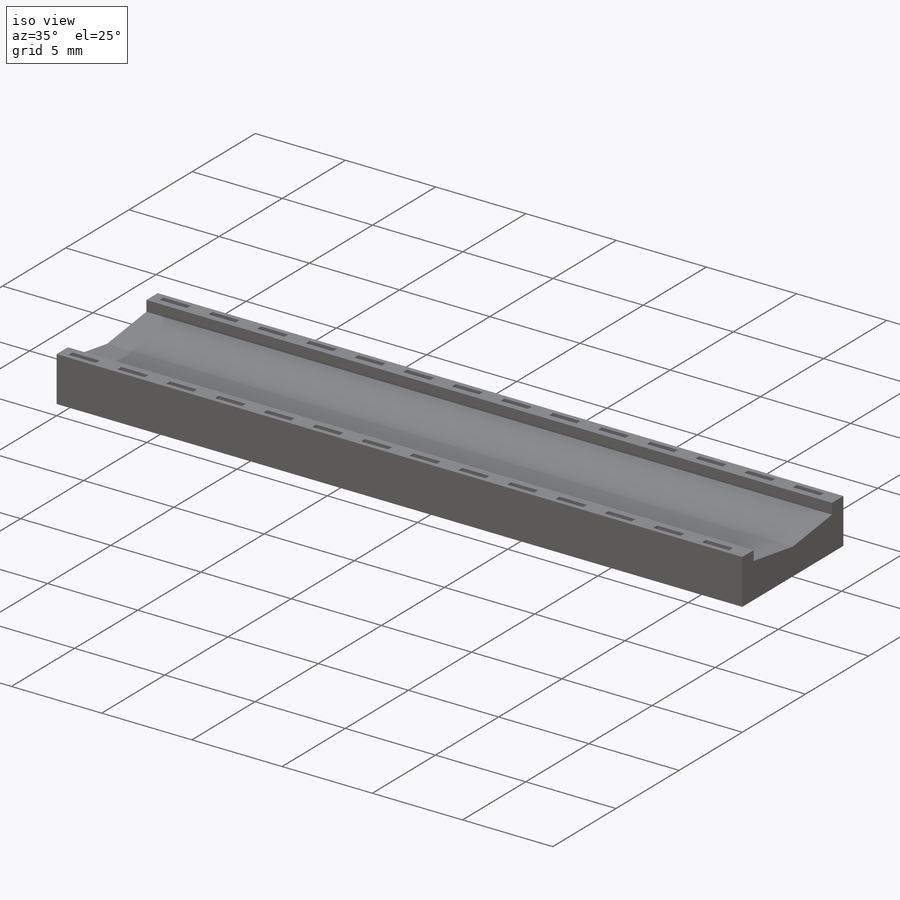
[diagram: iso view]
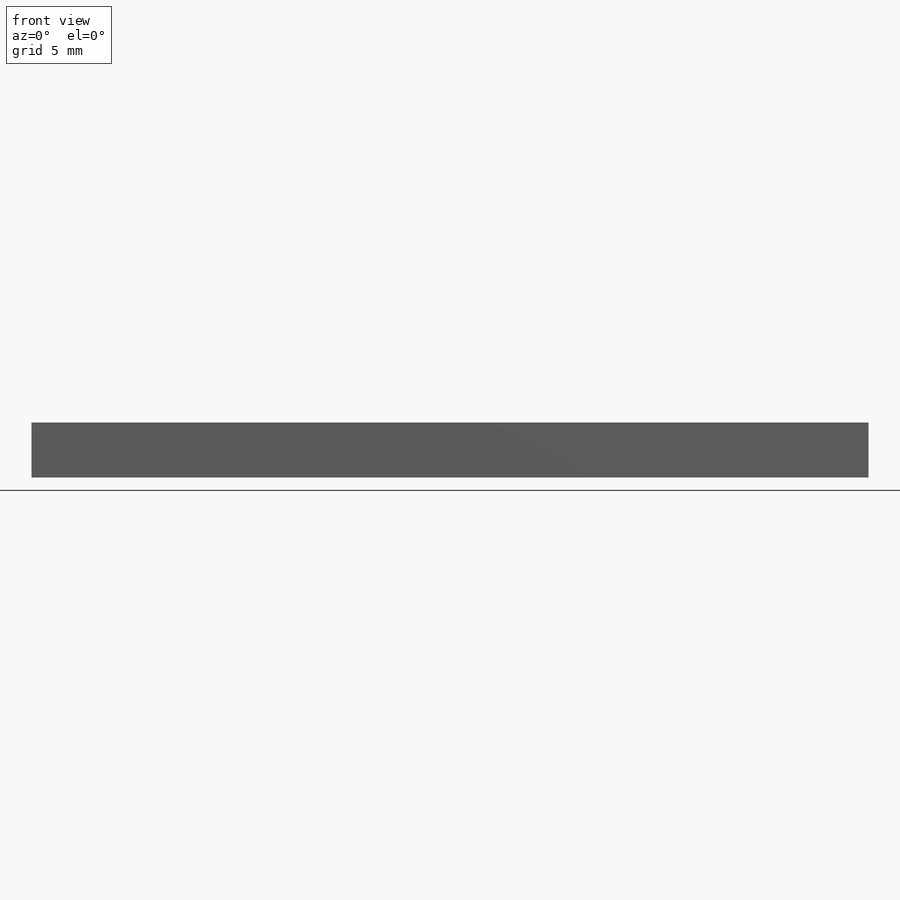
[diagram: front view]
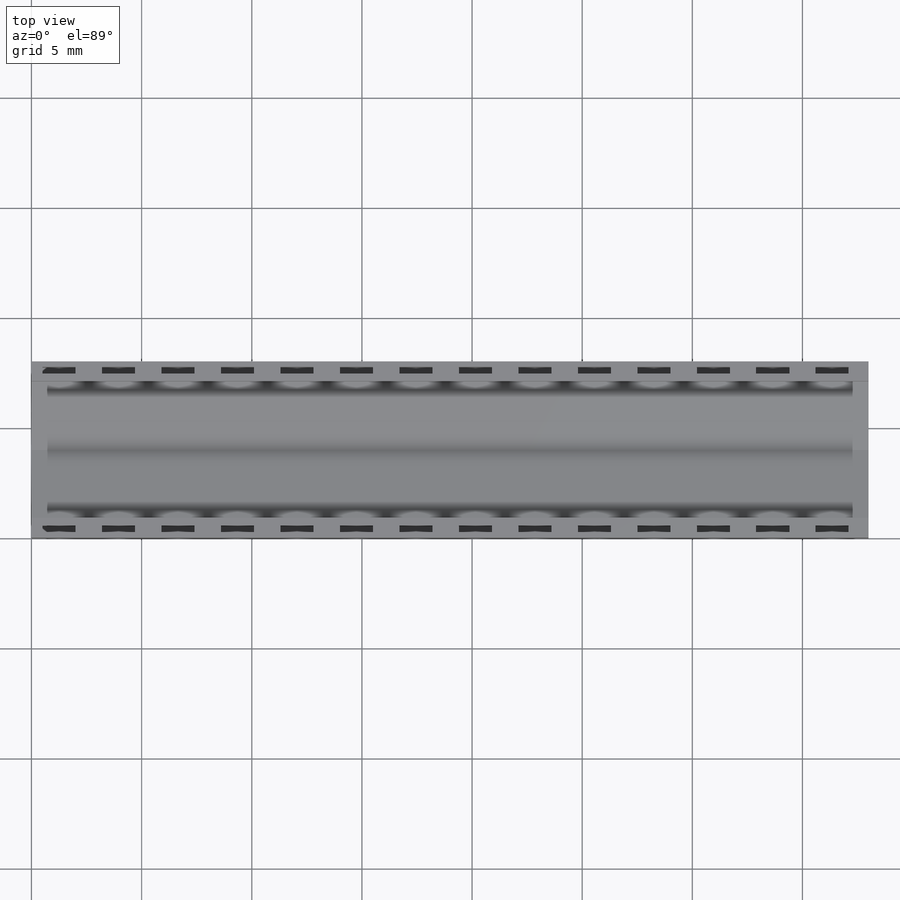
[diagram: top view]
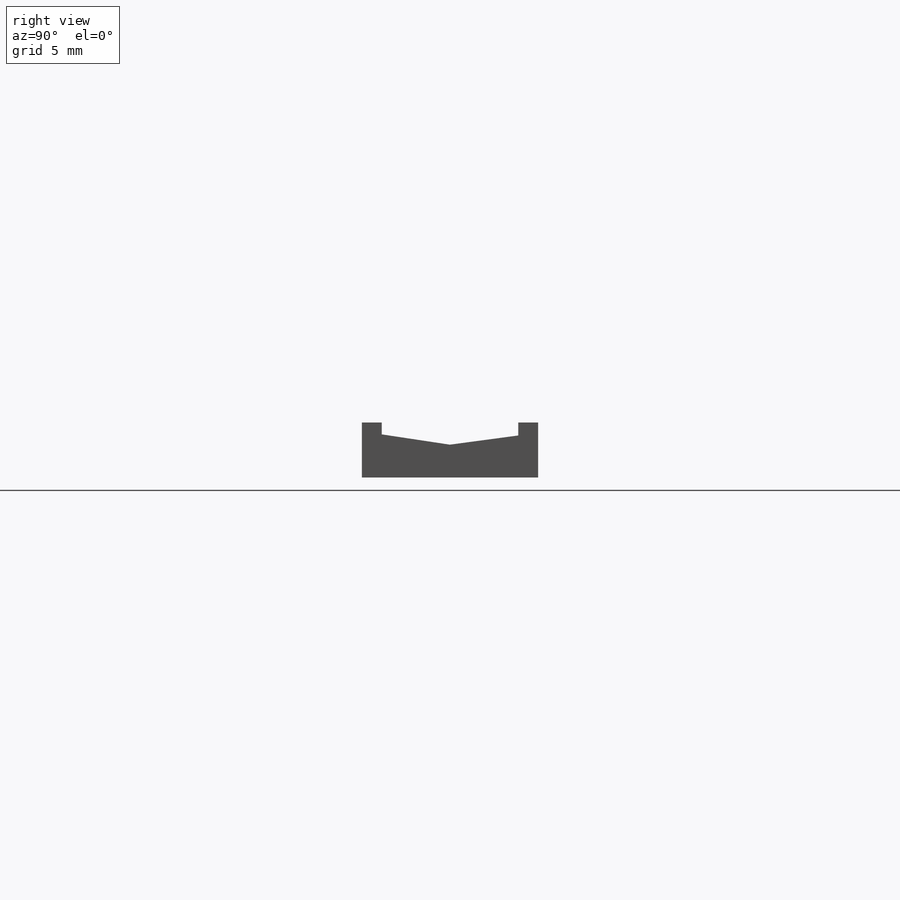
[diagram: right view]
SOLIDWORKS PART (.sldprt)
format: sldprt  version: not decoded by parser v0  size: 236,544 bytes
history: native  units: mm
features: sketch x3, cut_extrude x2, material x1, extrude x1, pattern_linear x1 (+12 scaffold rows collapsed)
feature tree (20):
  scaffold x12  (default folders/planes/origin — collapsed)
  material  "Material <not specified>"
  sketch  "Sketch1"  dims[D1=38.0mm D2=8.0mm]
  extrude  "Boss-Extrude1"  Depth=2.5mm
  sketch  "Sketch2"  dims[D1=0.3mm D2=0.5mm D3=1.5mm D4=0.25mm]
  cut_extrude  "Cut-Extrude1"  Depth=2mm
  pattern_linear  "LPattern1"  Count1=14 Count2=2 Spacing1=2.7mm Spacing2=7.2mm
  sketch  "Sketch3"  dims[D1=0.9mm D2=0.9mm]
  cut_extrude  "Cut-Extrude3"  [1 undecoded]
decode coverage: 6 of 7 modeling features carry decoded parameters
note: 1 parameter value undecoded
note: suppression state not decoded; provenance and decode notes live in map.json
